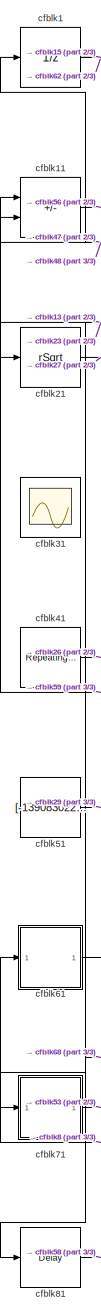
[diagram: root canvas - part 1/3, left side, full height]
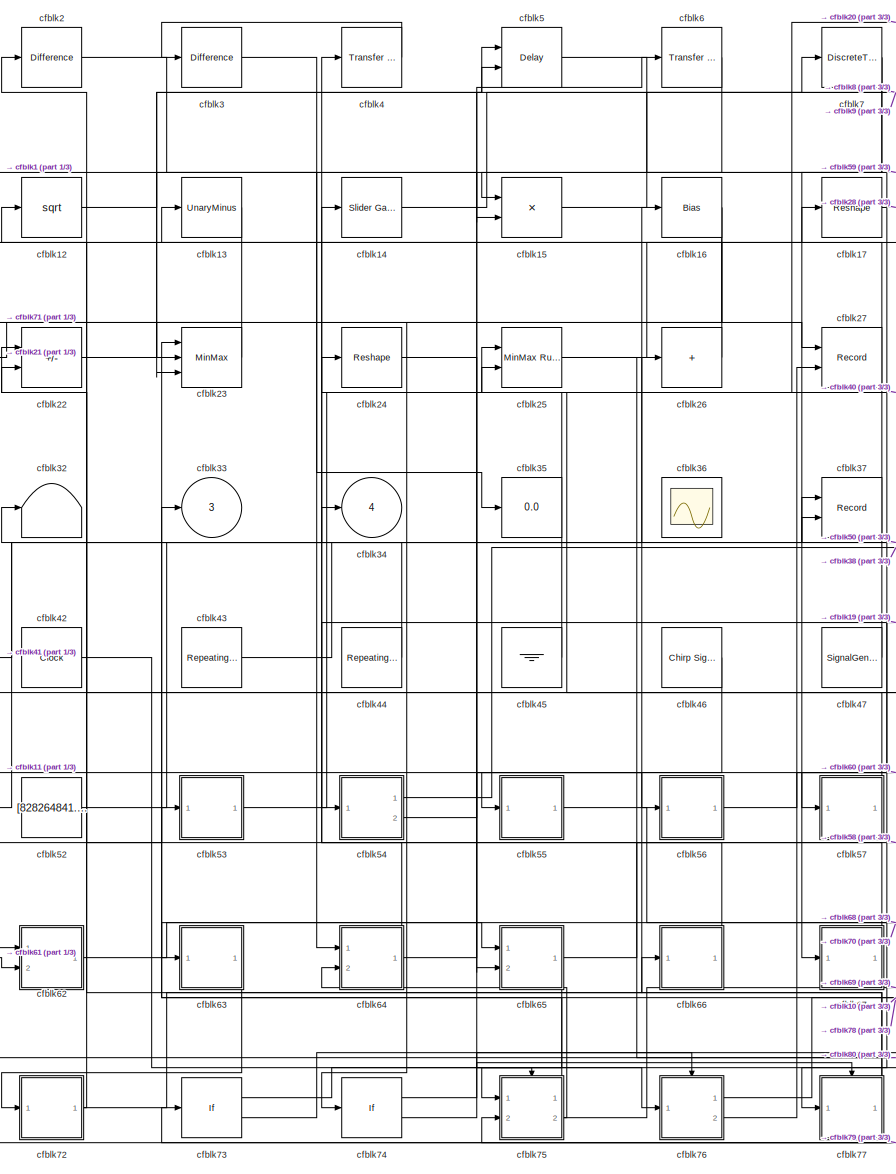
[diagram: root canvas - part 2/3, center side, full height]
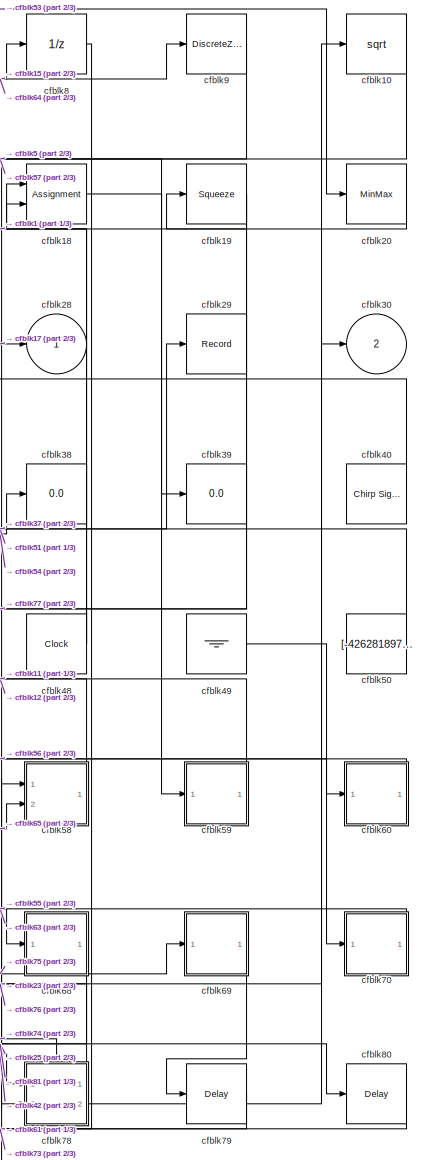
[diagram: root canvas - part 3/3, right side, full height]
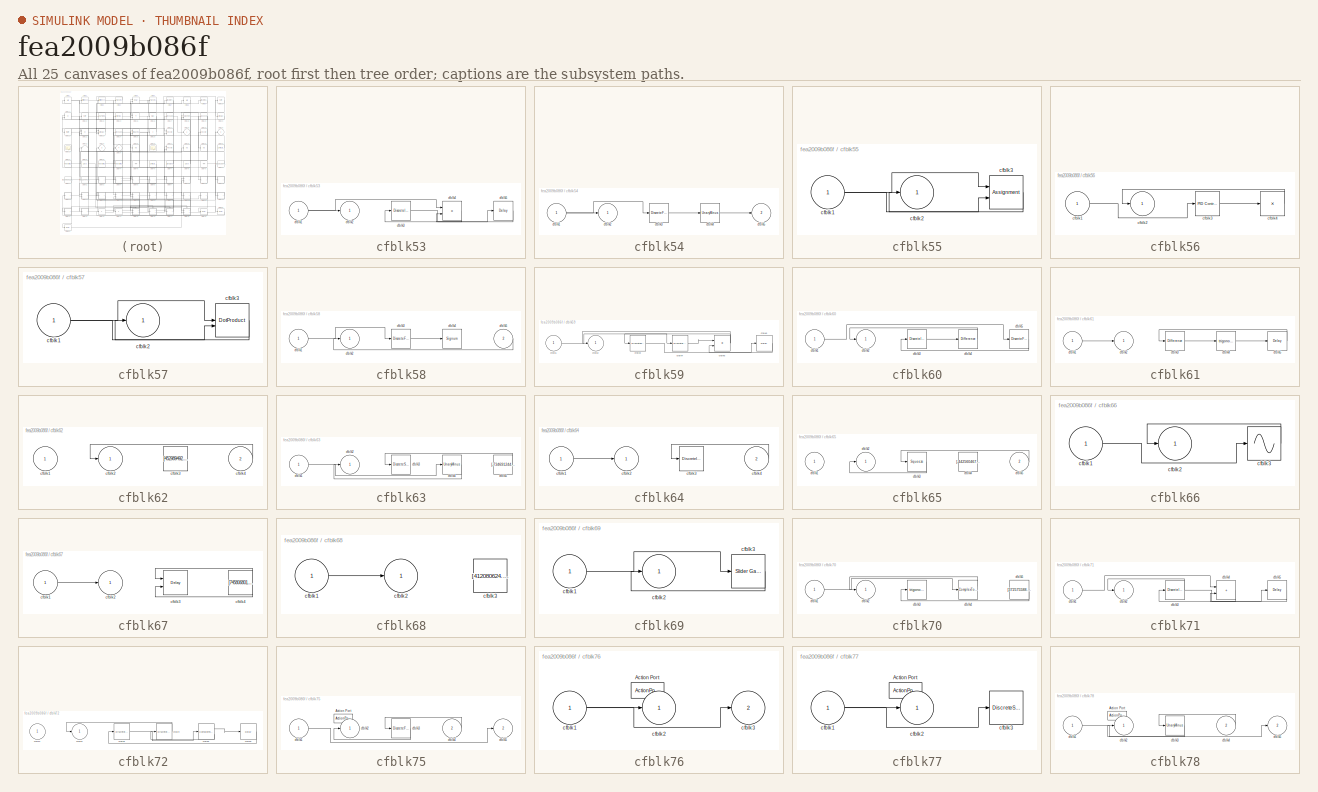
[diagram: thumbnail index - all 25 canvases of the model, root first then tree order]
MODEL slx_fea2009b086f
KIND model
CONFIG AbsTol = auto
CONFIG EnableMultiTasking = off
CONFIG FixedStep = auto
CONFIG MaxStep = auto
CONFIG MinStep = auto
CONFIG RelTol = 1e-3
CONFIG SampleTimeConstraint = Unconstrained
CONFIG SolverName = VariableStepAuto
CONFIG StartTime = 0.0
CONFIG StopTime = 10.0
BLOCK [UnitDelay] cfblk1
  HasFrameUpgradeWarning = on
BLOCK [Sqrt] cfblk10
BLOCK [Sum] cfblk11
  IconShape = rectangular
  Inputs = +-
  Ports = [2, 1]
BLOCK [Sqrt] cfblk12
BLOCK [UnaryMinus] cfblk13
BLOCK [Reference] cfblk14  REF=simulink/Math
Operations/Slider
Gain
  Ports = [1, 1]
  SourceBlock = simulink/Math\nOperations/Slider\nGain
  SourceProductBaseCode = SL
  SourceType = Slider Gain
BLOCK [Product] cfblk15
  Ports = [2, 1]
BLOCK [Bias] cfblk16
  Bias = [244894587.861669]
  SaturateOnIntegerOverflow = off
BLOCK [Reshape] cfblk17
  Ports = [1, 1]
BLOCK [Assignment] cfblk18
  DiagnosticForDimensions = Warning
  IndexOptions = Index vector (dialog)
  Indices = 1
  OutputSizes = 1
  Ports = [2, 1]
BLOCK [Squeeze] cfblk19
BLOCK [Reference] cfblk2  REF=simulink/Discrete/Difference
  Ports = [1, 1]
  SourceBlock = simulink/Discrete/Difference
  SourceProductBaseCode = SL
  SourceType = Difference
BLOCK [MinMax] cfblk20
  Ports = [1, 1]
BLOCK [Sqrt] cfblk21
  AlgorithmType = Newton-Raphson
  Operator = rSqrt
BLOCK [Sum] cfblk22
  IconShape = rectangular
  Inputs = +-
  Ports = [2, 1]
BLOCK [MinMax] cfblk23
  Inputs = 3
  Ports = [3, 1]
BLOCK [Reshape] cfblk24
  Ports = [1, 1]
BLOCK [Reference] cfblk25  REF=simulink/Math
Operations/MinMax
Running
Resettable
  Ports = [2, 1]
  SourceBlock = simulink/Math\nOperations/MinMax\nRunning\nResettable
  SourceProductBaseCode = SL
  SourceType = MinMax Running Resettable
BLOCK [Sum] cfblk26
  IconShape = rectangular
  Inputs = +
  Ports = [1, 1]
BLOCK [Record] cfblk27
  CompatibilityTag = XY
  FileSettingsInternal = {"entries":[{"content":{"excelSettings":{"content":{},"type":"Streamout.ExcelSettings"}},"type":"Streamout.FileSettingStorage","uuid":"01a86b24-10fd-47b5-8f86-b590ee2283c4"}],"packageUris":["http://schema.mathworks.com/mf0/streamout_blocks/R2020a"],"version":"1.0"}
  Layout = [1 1]
  Ports = [2]
  SignalsInternal = {"entries":[{"content":{"signals":[{"content":{"blockPath":["sampleModel280/cfblk27"],"channel":[],"dimensions":[1],"domain":"sampleModel280/cfblk27","lineColor":"#a2142f","plots":[1],"port":1,"sid":[""],"signalID":11869,"signalName":"cfblk21"},"type":"RecordBlkView.Signal","uuid":"a0fc44e3-e2e4-42ff-bb3b-f537f22ba603"},{"content":{"blockPath":["sampleModel280/cfblk27"],"channel":[],"dimensions":[...<+387ch>
  VisualizationBindings = {"xyplotplugin":{"info":[{"series":[{"bindingParametersList":[{"parameter":"X-Axis","signalID":11869,"signalName":"cfblk21"},{"parameter":"Y-Axis","signalID":11873,"signalName":"cfblk76:2"}],"seriesID":38376}],"subplotID":1}]}}
BLOCK [Outport] cfblk28
BLOCK [Record] cfblk29
  FileSettingsInternal = {"entries":[{"content":{"excelSettings":{"content":{},"type":"Streamout.ExcelSettings"}},"type":"Streamout.FileSettingStorage","uuid":"e8b19c5e-8c0f-47fc-b4c9-298200dd95d7"}],"packageUris":["http://schema.mathworks.com/mf0/streamout_blocks/R2020a"],"version":"1.0"}
  Ports = [1]
  SignalsInternal = {"entries":[{"content":{"signals":[{"content":{"blockPath":["sampleModel280/cfblk29"],"channel":[],"dimensions":[1],"domain":"sampleModel280/cfblk29","lineColor":"#edb120","plots":[1],"port":1,"sid":[""],"signalID":11881,"signalName":"cfblk51"},"type":"RecordBlkView.Signal","uuid":"65e0956e-956d-4622-b740-1f07b225f85c"}]},"type":"RecordBlkView.InputSignals","uuid":"866c25ee-dbf6-4b5f-85e6-0975c442...<+98ch>
  VisualizationBindings = {"sparklinesplugin":{"info":[{"bindingParametersList":[],"subplotID":1}]}}
BLOCK [Reference] cfblk3  REF=simulink/Discrete/Difference
  Ports = [1, 1]
  SourceBlock = simulink/Discrete/Difference
  SourceProductBaseCode = SL
  SourceType = Difference
BLOCK [Outport] cfblk30
  Port = 2
BLOCK [Scope] cfblk31
  Floating = on
  NumInputPorts = 1
  Ports = []
BLOCK [Terminator] cfblk32
BLOCK [Outport] cfblk33
  Port = 3
BLOCK [Outport] cfblk34
  Port = 4
BLOCK [Display] cfblk35
  Decimation = 1
  Ports = [1]
BLOCK [Scope] cfblk36
  Floating = on
  NumInputPorts = 1
  Ports = []
BLOCK [Record] cfblk37
  CompatibilityTag = XY
  FileSettingsInternal = {"entries":[{"content":{"excelSettings":{"content":{},"type":"Streamout.ExcelSettings"}},"type":"Streamout.FileSettingStorage","uuid":"e62b4aea-36b7-4c87-85d7-a4ab9cb59138"}],"packageUris":["http://schema.mathworks.com/mf0/streamout_blocks/R2020a"],"version":"1.0"}
  Layout = [1 1]
  Ports = [2]
  SignalsInternal = {"entries":[{"content":{"signals":[{"content":{"blockPath":["sampleModel280/cfblk37"],"channel":[],"dimensions":[1],"domain":"sampleModel280/cfblk37","lineColor":"#a2142f","plots":[1],"port":1,"sid":[""],"signalID":11885,"signalName":"cfblk43"},"type":"RecordBlkView.Signal","uuid":"4226a702-03e0-4b16-abca-3234c63018e1"},{"content":{"blockPath":["sampleModel280/cfblk37"],"channel":[],"dimensions":[...<+385ch>
  VisualizationBindings = {"xyplotplugin":{"info":[{"series":[{"bindingParametersList":[{"parameter":"X-Axis","signalID":11885,"signalName":"cfblk43"},{"parameter":"Y-Axis","signalID":11889,"signalName":"cfblk50"}],"seriesID":28925}],"subplotID":1}]}}
BLOCK [Display] cfblk38
  Decimation = 1
  Ports = [1]
BLOCK [Display] cfblk39
  Decimation = 1
  Ports = [1]
BLOCK [Reference] cfblk4  REF=simulink/Discrete/Transfer Fcn
Real Zero
  Ports = [1, 1]
  SourceBlock = simulink/Discrete/Transfer Fcn\nReal Zero
  SourceProductBaseCode = SL
  SourceType = Transfer Fcn Real Zero
BLOCK [Reference] cfblk40  REF=simulink/Sources/Chirp Signal
  Ports = [0, 1]
  SourceBlock = simulink/Sources/Chirp Signal
  SourceProductBaseCode = SL
  SourceType = chirp
BLOCK [Reference] cfblk41  REF=simulink/Sources/Repeating
Sequence
  Ports = [0, 1]
  SourceBlock = simulink/Sources/Repeating\nSequence
  SourceProductBaseCode = SL
  SourceType = Repeating table
BLOCK [Clock] cfblk42
BLOCK [Reference] cfblk43  REF=simulink/Sources/Repeating
Sequence
Interpolated
  Ports = [0, 1]
  SourceBlock = simulink/Sources/Repeating\nSequence\nInterpolated
  SourceProductBaseCode = SL
  SourceType = Repeating Sequence Interpolated
BLOCK [Reference] cfblk44  REF=simulink/Sources/Repeating
Sequence
Stair
  Ports = [0, 1]
  SourceBlock = simulink/Sources/Repeating\nSequence\nStair
  SourceProductBaseCode = SL
  SourceType = Repeating Sequence Stair
BLOCK [Ground] cfblk45
BLOCK [Reference] cfblk46  REF=simulink/Sources/Chirp Signal
  Ports = [0, 1]
  SourceBlock = simulink/Sources/Chirp Signal
  SourceProductBaseCode = SL
  SourceType = chirp
BLOCK [SignalGenerator] cfblk47
  Amplitude = [315229153.492773]
  Ports = [0, 1]
  Units = rad/sec
  WaveForm = square
BLOCK [Clock] cfblk48
BLOCK [Ground] cfblk49
BLOCK [Delay] cfblk5
  DelayLengthSource = Input port
  InputPortMap = u0,p1
  Ports = [2, 1]
  SampleTime = 1
BLOCK [Constant] cfblk50
  SampleTime = 1
  Value = [-426281897.993891]
BLOCK [Constant] cfblk51
  SampleTime = 1
  Value = [-139083022.584503]
BLOCK [Constant] cfblk52
  SampleTime = 1
  Value = [828264841.699872]
BLOCK [SubSystem] cfblk53
  Ports = [1, 1]
  RequestExecContextInheritance = off
BLOCK [Inport] cfblk53/cfblk1
BLOCK [Outport] cfblk53/cfblk2
BLOCK [DiscreteIntegrator] cfblk53/cfblk3
  ICPrevOutput = DiscIntNeverNeededParam
  ICPrevScaledInput = DiscIntNeverNeededParam
  InitialConditionSetting = Auto
  Ports = [1, 1]
BLOCK [Product] cfblk53/cfblk4
  Inputs = **
  Ports = [2, 1]
BLOCK [Delay] cfblk53/cfblk5
  InputPortMap = u0
  Ports = [1, 1]
  SampleTime = 1
BLOCK [SubSystem] cfblk54
  Ports = [1, 2]
  RequestExecContextInheritance = off
BLOCK [Inport] cfblk54/cfblk1
BLOCK [Outport] cfblk54/cfblk2
BLOCK [DiscreteFilter] cfblk54/cfblk3
  InputPortMap = u0
  Ports = [1, 1]
  SampleTime = 1
BLOCK [UnaryMinus] cfblk54/cfblk4
BLOCK [Outport] cfblk54/cfblk5
  Port = 2
BLOCK [SubSystem] cfblk55
  Ports = [1, 1]
  RequestExecContextInheritance = off
BLOCK [Inport] cfblk55/cfblk1
BLOCK [Outport] cfblk55/cfblk2
BLOCK [Assignment] cfblk55/cfblk3
  DiagnosticForDimensions = Warning
  IndexOptions = Index vector (dialog)
  Indices = 1
  OutputSizes = 1
  Ports = [2, 1]
BLOCK [SubSystem] cfblk56
  Ports = [1, 1]
  RequestExecContextInheritance = off
BLOCK [Inport] cfblk56/cfblk1
BLOCK [Outport] cfblk56/cfblk2
BLOCK [Reference] cfblk56/cfblk3  REF=slpidlib/PID Controller
  Ports = [1, 1]
  SourceBlock = slpidlib/PID Controller
  SourceProductBaseCode = SL
  SourceType = PID 1dof
BLOCK [Product] cfblk56/cfblk4
  Inputs = *
  Ports = [1, 1]
BLOCK [SubSystem] cfblk57
  Ports = [1, 1]
  RequestExecContextInheritance = off
BLOCK [Inport] cfblk57/cfblk1
BLOCK [Outport] cfblk57/cfblk2
BLOCK [DotProduct] cfblk57/cfblk3
  OutDataTypeStr = Inherit: Inherit via internal rule
BLOCK [SubSystem] cfblk58
  Ports = [2, 1]
  RequestExecContextInheritance = off
BLOCK [Inport] cfblk58/cfblk1
BLOCK [Outport] cfblk58/cfblk2
BLOCK [DiscreteFilter] cfblk58/cfblk3
  InputPortMap = u0
  Ports = [1, 1]
  SampleTime = 1
BLOCK [Signum] cfblk58/cfblk4
BLOCK [Inport] cfblk58/cfblk5
  Port = 2
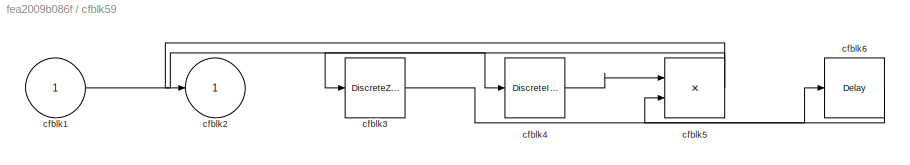
BLOCK [SubSystem] cfblk59
  Ports = [1, 1]
  RequestExecContextInheritance = off
BLOCK [Inport] cfblk59/cfblk1
BLOCK [Outport] cfblk59/cfblk2
BLOCK [DiscreteZeroPole] cfblk59/cfblk3
  Gain = 1
  Poles = [0 0.5]
BLOCK [DiscreteIntegrator] cfblk59/cfblk4
  ICPrevOutput = DiscIntNeverNeededParam
  ICPrevScaledInput = DiscIntNeverNeededParam
  InitialConditionSetting = Auto
  Ports = [1, 1]
BLOCK [Product] cfblk59/cfblk5
  Inputs = **
  Ports = [2, 1]
BLOCK [Delay] cfblk59/cfblk6
  InputPortMap = u0
  Ports = [1, 1]
  SampleTime = 1
BLOCK [Reference] cfblk6  REF=simulink/Discrete/Transfer Fcn
Lead or Lag
  Ports = [1, 1]
  SourceBlock = simulink/Discrete/Transfer Fcn\nLead or Lag
  SourceProductBaseCode = SL
  SourceType = Lead or Lag Compensator
BLOCK [SubSystem] cfblk60
  Ports = [1, 1]
  RequestExecContextInheritance = off
BLOCK [Inport] cfblk60/cfblk1
BLOCK [Outport] cfblk60/cfblk2
BLOCK [DiscreteIntegrator] cfblk60/cfblk3
  ICPrevOutput = DiscIntNeverNeededParam
  ICPrevScaledInput = DiscIntNeverNeededParam
  InitialConditionSetting = Auto
  Ports = [1, 1]
BLOCK [Reference] cfblk60/cfblk4  REF=simulink/Discrete/Difference
  Ports = [1, 1]
  SourceBlock = simulink/Discrete/Difference
  SourceProductBaseCode = SL
  SourceType = Difference
BLOCK [DiscreteFir] cfblk60/cfblk5
  InputPortMap = u0
  OutputPortMap = o0
  Ports = [1, 1]
  SampleTime = 1
BLOCK [SubSystem] cfblk61
  Ports = [1, 1]
  RequestExecContextInheritance = off
BLOCK [Inport] cfblk61/cfblk1
BLOCK [Outport] cfblk61/cfblk2
BLOCK [Reference] cfblk61/cfblk3  REF=simulink/Discrete/Difference
  Ports = [1, 1]
  SourceBlock = simulink/Discrete/Difference
  SourceProductBaseCode = SL
  SourceType = Difference
BLOCK [Trigonometry] cfblk61/cfblk4
  Ports = [1, 1]
BLOCK [Delay] cfblk61/cfblk5
  InputPortMap = u0
  Ports = [1, 1]
  SampleTime = 1
BLOCK [SubSystem] cfblk62
  Ports = [2, 1]
  RequestExecContextInheritance = off
BLOCK [Inport] cfblk62/cfblk1
BLOCK [Outport] cfblk62/cfblk2
BLOCK [Constant] cfblk62/cfblk3
  SampleTime = 1
  Value = [452989492.075059]
BLOCK [Inport] cfblk62/cfblk4
  Port = 2
BLOCK [SubSystem] cfblk63
  Ports = [1, 1]
  RequestExecContextInheritance = off
BLOCK [Inport] cfblk63/cfblk1
BLOCK [Outport] cfblk63/cfblk2
BLOCK [DiscreteStateSpace] cfblk63/cfblk3
BLOCK [UnaryMinus] cfblk63/cfblk4
BLOCK [Constant] cfblk63/cfblk5
  SampleTime = 1
  Value = [-734691244.691543]
BLOCK [SubSystem] cfblk64
  Ports = [2, 1]
  RequestExecContextInheritance = off
BLOCK [Inport] cfblk64/cfblk1
BLOCK [Outport] cfblk64/cfblk2
BLOCK [DiscreteIntegrator] cfblk64/cfblk3
  ICPrevOutput = DiscIntNeverNeededParam
  ICPrevScaledInput = DiscIntNeverNeededParam
  InitialConditionSetting = Auto
  Ports = [1, 1]
BLOCK [Inport] cfblk64/cfblk4
  Port = 2
BLOCK [SubSystem] cfblk65
  Ports = [2, 1]
  RequestExecContextInheritance = off
BLOCK [Inport] cfblk65/cfblk1
BLOCK [Outport] cfblk65/cfblk2
BLOCK [Squeeze] cfblk65/cfblk3
BLOCK [Constant] cfblk65/cfblk4
  SampleTime = 1
  Value = [-442560467.563874]
BLOCK [Inport] cfblk65/cfblk5
  Port = 2
BLOCK [SubSystem] cfblk66
  Ports = [1, 1]
  RequestExecContextInheritance = off
BLOCK [Inport] cfblk66/cfblk1
BLOCK [Outport] cfblk66/cfblk2
BLOCK [Sin] cfblk66/cfblk3
  Ports = [1, 1]
  SampleTime = 0
  TimeSource = Use external signal
BLOCK [SubSystem] cfblk67
  Ports = [1, 1]
  RequestExecContextInheritance = off
BLOCK [Inport] cfblk67/cfblk1
BLOCK [Outport] cfblk67/cfblk2
BLOCK [Delay] cfblk67/cfblk3
  DelayLengthSource = Input port
  InputPortMap = u0,p1
  Ports = [2, 1]
  SampleTime = 1
BLOCK [Constant] cfblk67/cfblk4
  SampleTime = 1
  Value = [745806801.382986]
BLOCK [SubSystem] cfblk68
  Ports = [1, 1]
  RequestExecContextInheritance = off
BLOCK [Inport] cfblk68/cfblk1
BLOCK [Outport] cfblk68/cfblk2
BLOCK [Constant] cfblk68/cfblk3
  SampleTime = 1
  Value = [412080624.706913]
BLOCK [SubSystem] cfblk69
  Ports = [1, 1]
  RequestExecContextInheritance = off
BLOCK [Inport] cfblk69/cfblk1
BLOCK [Outport] cfblk69/cfblk2
BLOCK [Reference] cfblk69/cfblk3  REF=simulink/Math
Operations/Slider
Gain
  Ports = [1, 1]
  SourceBlock = simulink/Math\nOperations/Slider\nGain
  SourceProductBaseCode = SL
  SourceType = Slider Gain
BLOCK [DiscreteTransferFcn] cfblk7
  InputPortMap = u0
  Ports = [1, 1]
  SampleTime = 1
BLOCK [SubSystem] cfblk70
  Ports = [1, 1]
  RequestExecContextInheritance = off
BLOCK [Inport] cfblk70/cfblk1
BLOCK [Outport] cfblk70/cfblk2
BLOCK [Trigonometry] cfblk70/cfblk3
  Ports = [1, 1]
BLOCK [ComplexToMagnitudeAngle] cfblk70/cfblk4
  Ports = [1, 2]
BLOCK [Constant] cfblk70/cfblk5
  SampleTime = 1
  Value = [372575588.669892]
BLOCK [SubSystem] cfblk71
  Ports = [1, 1]
  RequestExecContextInheritance = off
BLOCK [Inport] cfblk71/cfblk1
BLOCK [Outport] cfblk71/cfblk2
BLOCK [DiscreteIntegrator] cfblk71/cfblk3
  ICPrevOutput = DiscIntNeverNeededParam
  ICPrevScaledInput = DiscIntNeverNeededParam
  InitialConditionSetting = Auto
  Ports = [1, 1]
BLOCK [Sum] cfblk71/cfblk4
  IconShape = rectangular
  Ports = [2, 1]
BLOCK [Delay] cfblk71/cfblk5
  InputPortMap = u0
  Ports = [1, 1]
  SampleTime = 1
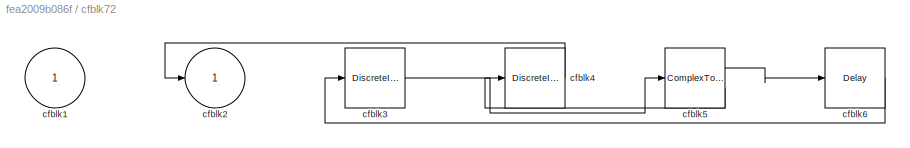
BLOCK [SubSystem] cfblk72
  Ports = [1, 1]
  RequestExecContextInheritance = off
BLOCK [Inport] cfblk72/cfblk1
BLOCK [Outport] cfblk72/cfblk2
BLOCK [DiscreteIntegrator] cfblk72/cfblk3
  ICPrevOutput = DiscIntNeverNeededParam
  ICPrevScaledInput = DiscIntNeverNeededParam
  InitialConditionSetting = Auto
  Ports = [1, 1]
BLOCK [DiscreteIntegrator] cfblk72/cfblk4
  ICPrevOutput = DiscIntNeverNeededParam
  ICPrevScaledInput = DiscIntNeverNeededParam
  InitialConditionSetting = Auto
  Ports = [1, 1]
BLOCK [ComplexToMagnitudeAngle] cfblk72/cfblk5
  Ports = [1, 2]
BLOCK [Delay] cfblk72/cfblk6
  InputPortMap = u0
  Ports = [1, 1]
  SampleTime = 1
BLOCK [If] cfblk73
  IfExpression = u1 >= 0
  Ports = [1, 2]
  SampleTime = 1
BLOCK [If] cfblk74
  IfExpression = u1 >= 0
  Ports = [1, 2]
  SampleTime = 1
BLOCK [SubSystem] cfblk75
  Ports = [2, 2, 0, 0, 0, 0, 0, 1]
  RequestExecContextInheritance = off
  TreatAsAtomicUnit = on
BLOCK [ActionPort] cfblk75/Action Port
  ActionPortLabel = if(u1 >= 0)
BLOCK [Inport] cfblk75/cfblk1
BLOCK [Outport] cfblk75/cfblk2
BLOCK [DiscreteFilter] cfblk75/cfblk3
  InputPortMap = u0
  Ports = [1, 1]
BLOCK [Inport] cfblk75/cfblk4
  Port = 2
BLOCK [Outport] cfblk75/cfblk5
  Port = 2
BLOCK [SubSystem] cfblk76
  Ports = [1, 2, 0, 0, 0, 0, 0, 1]
  RequestExecContextInheritance = off
  TreatAsAtomicUnit = on
BLOCK [ActionPort] cfblk76/Action Port
  ActionPortLabel = else
BLOCK [Inport] cfblk76/cfblk1
BLOCK [Outport] cfblk76/cfblk2
BLOCK [Outport] cfblk76/cfblk3
  Port = 2
BLOCK [SubSystem] cfblk77
  Ports = [1, 1, 0, 0, 0, 0, 0, 1]
  RequestExecContextInheritance = off
  TreatAsAtomicUnit = on
BLOCK [ActionPort] cfblk77/Action Port
  ActionPortLabel = if(u1 >= 0)
BLOCK [Inport] cfblk77/cfblk1
BLOCK [Outport] cfblk77/cfblk2
BLOCK [DiscreteStateSpace] cfblk77/cfblk3
  SampleTime = -1
BLOCK [SubSystem] cfblk78
  Ports = [2, 2, 0, 0, 0, 0, 0, 1]
  RequestExecContextInheritance = off
  TreatAsAtomicUnit = on
BLOCK [ActionPort] cfblk78/Action Port
  ActionPortLabel = else
BLOCK [Inport] cfblk78/cfblk1
BLOCK [Outport] cfblk78/cfblk2
BLOCK [UnaryMinus] cfblk78/cfblk3
BLOCK [Inport] cfblk78/cfblk4
  Port = 2
BLOCK [Outport] cfblk78/cfblk5
  Port = 2
BLOCK [Delay] cfblk79
  InputPortMap = u0
  Ports = [1, 1]
  SampleTime = 1
BLOCK [UnitDelay] cfblk8
  HasFrameUpgradeWarning = on
BLOCK [Delay] cfblk80
  InputPortMap = u0
  Ports = [1, 1]
  SampleTime = 1
BLOCK [Delay] cfblk81
  InputPortMap = u0
  Ports = [1, 1]
  SampleTime = 1
BLOCK [DiscreteZeroPole] cfblk9
  Gain = 1
  Poles = [0 0.5]
LINE cfblk10:1 -> cfblk78:2
LINE cfblk11:1 -> cfblk56:1
LINE cfblk12:1 -> cfblk5:2
LINE cfblk13:1 -> cfblk71:1
LINE cfblk14:1 -> cfblk7:1
LINE cfblk15:1 -> cfblk8:1
NET cfblk16:1 -> cfblk23:3, cfblk74:1
LINE cfblk17:1 -> cfblk28:1
LINE cfblk18:1 -> cfblk39:1
NET cfblk19:1 -> cfblk18:2, cfblk54:1, cfblk77:1
NET cfblk1:1 -> cfblk15:2, cfblk62:1
LINE cfblk20:1 -> cfblk19:1
LINE cfblk21:1 -> cfblk27:1
LINE cfblk22:1 -> cfblk5:1
LINE cfblk23:1 -> cfblk21:1
LINE cfblk24:1 -> cfblk76:1
NET cfblk25:1 -> cfblk17:1, cfblk80:1
LINE cfblk26:1 -> cfblk13:1
LINE cfblk2:1 -> cfblk64:1
LINE cfblk3:1 -> cfblk35:1
LINE cfblk40:1 -> cfblk25:2
LINE cfblk41:1 -> cfblk26:1
LINE cfblk42:1 -> cfblk78:1
LINE cfblk43:1 -> cfblk37:1
LINE cfblk44:1 -> cfblk32:1
LINE cfblk45:1 -> cfblk24:1
LINE cfblk46:1 -> cfblk65:2
LINE cfblk47:1 -> cfblk11:2
NET cfblk48:1 -> cfblk18:1, cfblk1:1
LINE cfblk49:1 -> cfblk70:1
LINE cfblk4:1 -> cfblk3:1
LINE cfblk50:1 -> cfblk37:2
LINE cfblk51:1 -> cfblk29:1
LINE cfblk52:1 -> cfblk14:1
NET cfblk53/cfblk1:1 -> cfblk53/cfblk2:1, cfblk53/cfblk4:1
LINE cfblk53/cfblk3:1 -> cfblk53/cfblk5:1
LINE cfblk53/cfblk4:1 -> cfblk53/cfblk3:1
LINE cfblk53/cfblk5:1 -> cfblk53/cfblk4:2
LINE cfblk53:1 -> cfblk20:1
NET cfblk54/cfblk1:1 -> cfblk54/cfblk2:1, cfblk54/cfblk3:1
LINE cfblk54/cfblk3:1 -> cfblk54/cfblk4:1
LINE cfblk54/cfblk4:1 -> cfblk54/cfblk5:1
LINE cfblk54:1 -> cfblk38:1
LINE cfblk54:2 -> cfblk6:1
NET cfblk55/cfblk1:1 -> cfblk55/cfblk3:1, cfblk55/cfblk3:2
LINE cfblk55/cfblk3:1 -> cfblk55/cfblk2:1
LINE cfblk55:1 -> cfblk68:1
LINE cfblk56/cfblk1:1 -> cfblk56/cfblk3:1
LINE cfblk56/cfblk3:1 -> cfblk56/cfblk4:1
LINE cfblk56/cfblk4:1 -> cfblk56/cfblk2:1
LINE cfblk56:1 -> cfblk60:1
NET cfblk57/cfblk1:1 -> cfblk57/cfblk3:1, cfblk57/cfblk3:2
LINE cfblk57/cfblk3:1 -> cfblk57/cfblk2:1
LINE cfblk57:1 -> cfblk25:1
LINE cfblk58/cfblk1:1 -> cfblk58/cfblk3:1
LINE cfblk58/cfblk3:1 -> cfblk58/cfblk4:1
LINE cfblk58/cfblk5:1 -> cfblk58/cfblk2:1
LINE cfblk58:1 -> cfblk12:1
LINE cfblk59/cfblk1:1 -> cfblk59/cfblk4:1
LINE cfblk59/cfblk3:1 -> cfblk59/cfblk6:1
LINE cfblk59/cfblk4:1 -> cfblk59/cfblk5:1
NET cfblk59/cfblk5:1 -> cfblk59/cfblk2:1, cfblk59/cfblk3:1
LINE cfblk59/cfblk6:1 -> cfblk59/cfblk5:2
LINE cfblk59:1 -> cfblk11:1
LINE cfblk5:1 -> cfblk59:1
LINE cfblk60/cfblk1:1 -> cfblk60/cfblk5:1
LINE cfblk60/cfblk3:1 -> cfblk60/cfblk4:1
LINE cfblk60/cfblk4:1 -> cfblk60/cfblk2:1
LINE cfblk60/cfblk5:1 -> cfblk60/cfblk3:1
LINE cfblk60:1 -> cfblk55:1
LINE cfblk61/cfblk1:1 -> cfblk61/cfblk2:1
LINE cfblk61/cfblk3:1 -> cfblk61/cfblk4:1
LINE cfblk61/cfblk4:1 -> cfblk61/cfblk5:1
LINE cfblk61/cfblk5:1 -> cfblk61/cfblk3:1
LINE cfblk61:1 -> cfblk62:2
LINE cfblk62/cfblk4:1 -> cfblk62/cfblk2:1
LINE cfblk62:1 -> cfblk65:1
LINE cfblk63/cfblk1:1 -> cfblk63/cfblk4:1
LINE cfblk63/cfblk4:1 -> cfblk63/cfblk2:1
LINE cfblk63/cfblk5:1 -> cfblk63/cfblk3:1
LINE cfblk63:1 -> cfblk72:1
LINE cfblk64/cfblk1:1 -> cfblk64/cfblk2:1
LINE cfblk64/cfblk4:1 -> cfblk64/cfblk3:1
NET cfblk64:1 -> cfblk4:1, cfblk9:1
LINE cfblk65/cfblk3:1 -> cfblk65/cfblk2:1
LINE cfblk65/cfblk5:1 -> cfblk65/cfblk3:1
NET cfblk65:1 -> cfblk58:2, cfblk75:1
LINE cfblk66/cfblk1:1 -> cfblk66/cfblk3:1
LINE cfblk66/cfblk3:1 -> cfblk66/cfblk2:1
LINE cfblk66:1 -> cfblk22:1
LINE cfblk67/cfblk1:1 -> cfblk67/cfblk2:1
NET cfblk67/cfblk4:1 -> cfblk67/cfblk3:1, cfblk67/cfblk3:2
LINE cfblk67:1 -> cfblk34:1
LINE cfblk68/cfblk1:1 -> cfblk68/cfblk2:1
LINE cfblk68:1 -> cfblk81:1
LINE cfblk69/cfblk1:1 -> cfblk69/cfblk3:1
LINE cfblk69/cfblk3:1 -> cfblk69/cfblk2:1
LINE cfblk69:1 -> cfblk79:1
LINE cfblk6:1 -> cfblk23:2
LINE cfblk70/cfblk1:1 -> cfblk70/cfblk4:1
LINE cfblk70/cfblk4:1 -> cfblk70/cfblk2:1
LINE cfblk70/cfblk5:1 -> cfblk70/cfblk3:1
LINE cfblk70:1 -> cfblk63:1
LINE cfblk71/cfblk1:1 -> cfblk71/cfblk4:1
NET cfblk71/cfblk3:1 -> cfblk71/cfblk2:1, cfblk71/cfblk5:1
LINE cfblk71/cfblk4:1 -> cfblk71/cfblk3:1
LINE cfblk71/cfblk5:1 -> cfblk71/cfblk4:2
LINE cfblk71:1 -> cfblk53:1
LINE cfblk72/cfblk3:1 -> cfblk72/cfblk5:1
LINE cfblk72/cfblk4:1 -> cfblk72/cfblk2:1
LINE cfblk72/cfblk5:1 -> cfblk72/cfblk6:1
LINE cfblk72/cfblk5:2 -> cfblk72/cfblk4:1
LINE cfblk72/cfblk6:1 -> cfblk72/cfblk3:1
NET cfblk72:1 -> cfblk16:1, cfblk22:2
LINE cfblk73:1 -> cfblk75:ifaction
LINE cfblk73:2 -> cfblk76:ifaction
LINE cfblk74:1 -> cfblk77:ifaction
LINE cfblk74:2 -> cfblk78:ifaction
LINE cfblk75/cfblk1:1 -> cfblk75/cfblk5:1
LINE cfblk75/cfblk3:1 -> cfblk75/cfblk2:1
LINE cfblk75/cfblk4:1 -> cfblk75/cfblk3:1
LINE cfblk75:1 -> cfblk33:1
NET cfblk75:2 -> cfblk64:2, cfblk69:1
NET cfblk76/cfblk1:1 -> cfblk76/cfblk2:1, cfblk76/cfblk3:1
LINE cfblk76:1 -> cfblk10:1
LINE cfblk76:2 -> cfblk27:2
NET cfblk77/cfblk1:1 -> cfblk77/cfblk2:1, cfblk77/cfblk3:1
NET cfblk77:1 -> cfblk2:1, cfblk66:1
LINE cfblk78/cfblk1:1 -> cfblk78/cfblk5:1
LINE cfblk78/cfblk3:1 -> cfblk78/cfblk2:1
LINE cfblk78/cfblk4:1 -> cfblk78/cfblk3:1
LINE cfblk78:1 -> cfblk23:1
LINE cfblk78:2 -> cfblk30:1
LINE cfblk79:1 -> cfblk75:2
NET cfblk7:1 -> cfblk15:1, cfblk67:1
LINE cfblk80:1 -> cfblk73:1
LINE cfblk81:1 -> cfblk58:1
LINE cfblk8:1 -> cfblk61:1
LINE cfblk9:1 -> cfblk57:1
note: NET lines group one-source signal fan-out (src -> all destinations, sorted); 1:1 wires keep LINE
